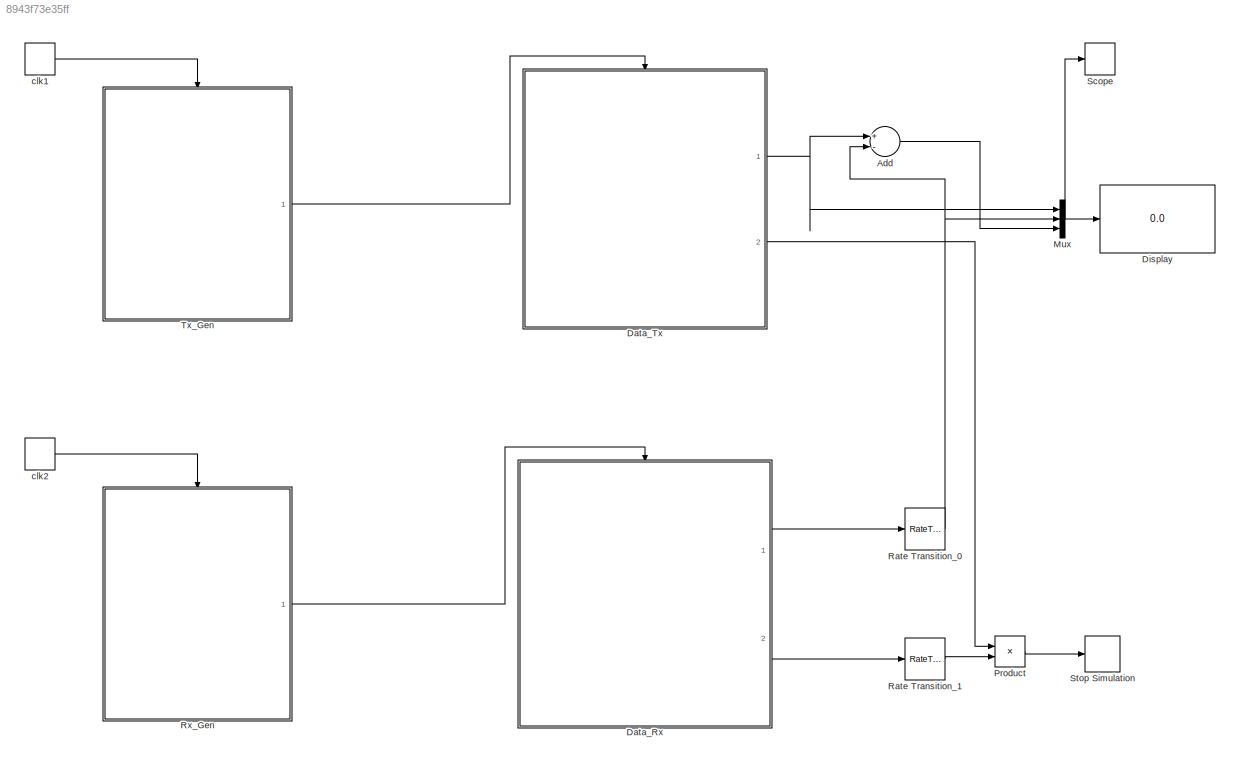
MODEL slx_8943f73e35ff
KIND model
CONFIG AbsTol = auto
CONFIG FixedStep = auto
CONFIG InitFcn = CB_Init;
CONFIG MaxStep = auto
CONFIG MinStep = auto
CONFIG RelTol = 1e-3
CONFIG SampleTimeConstraint = Unconstrained
CONFIG Solver = ode45
CONFIG SolverMode = Auto
CONFIG SolverName = ode45
CONFIG StartTime = 0.0
CONFIG StopFcn = CB_Stop;
CONFIG StopTime = inf
BLOCK [Sum] Add
  AccumDataTypeStr = double
  InputSameDT = off
  Inputs = +-
  OutDataTypeStr = double
  Ports = [2, 1]
  SaturateOnIntegerOverflow = off
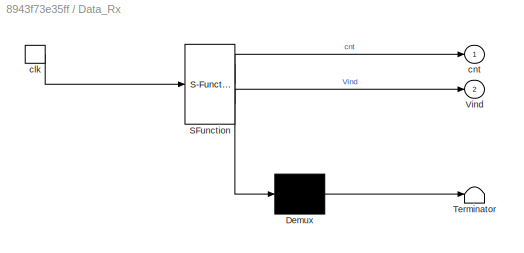
BLOCK [SubSystem] Data_Rx
  ErrorFcn = Stateflow.Translate.translate
  PermitHierarchicalResolution = ExplicitOnly
  Ports = [0, 2, 0, 1]
  RequestExecContextInheritance = off
  SFBlockType = Chart
  TreatAsAtomicUnit = on
BLOCK [Demux] Data_Rx/ Demux 
  Outputs = 1
  Ports = [1, 1]
BLOCK [S-Function] Data_Rx/ SFunction 
  EnableBusSupport = on
  FunctionName = sf_sfun
  PortCounts = [1 3]
  Ports = [1, 3]
  Tag = Stateflow S-Function lab_exer_mat_2 2
BLOCK [Terminator] Data_Rx/ Terminator 
BLOCK [Outport] Data_Rx/Vind
  IconDisplay = Port number
  Port = 2
BLOCK [TriggerPort] Data_Rx/clk
  Ports = [0, 1]
  ShowOutputPort = on
  StatesWhenEnabling = held
  TriggerType = either
BLOCK [Outport] Data_Rx/cnt
  IconDisplay = Port number
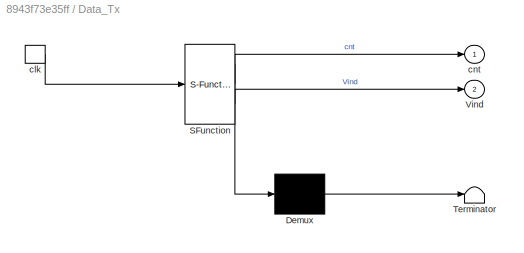
BLOCK [SubSystem] Data_Tx
  ErrorFcn = Stateflow.Translate.translate
  PermitHierarchicalResolution = ExplicitOnly
  Ports = [0, 2, 0, 1]
  RequestExecContextInheritance = off
  SFBlockType = Chart
  TreatAsAtomicUnit = on
BLOCK [Demux] Data_Tx/ Demux 
  Outputs = 1
  Ports = [1, 1]
BLOCK [S-Function] Data_Tx/ SFunction 
  EnableBusSupport = on
  FunctionName = sf_sfun
  PortCounts = [1 3]
  Ports = [1, 3]
  Tag = Stateflow S-Function lab_exer_mat_2 1
BLOCK [Terminator] Data_Tx/ Terminator 
BLOCK [Outport] Data_Tx/Vind
  IconDisplay = Port number
  Port = 2
BLOCK [TriggerPort] Data_Tx/clk
  Ports = [0, 1]
  ShowOutputPort = on
  StatesWhenEnabling = held
  TriggerType = either
BLOCK [Outport] Data_Tx/cnt
  IconDisplay = Port number
BLOCK [Display] Display
  Decimation = 1
  Ports = [1]
BLOCK [Mux] Mux
  DisplayOption = bar
  Inputs = 3
  Ports = [3, 1]
BLOCK [Product] Product
  InputSameDT = off
  OutDataTypeStr = Inherit: Inherit via internal rule
  Ports = [2, 1]
  SaturateOnIntegerOverflow = off
BLOCK [RateTransition] Rate Transition_0
BLOCK [RateTransition] Rate Transition_1
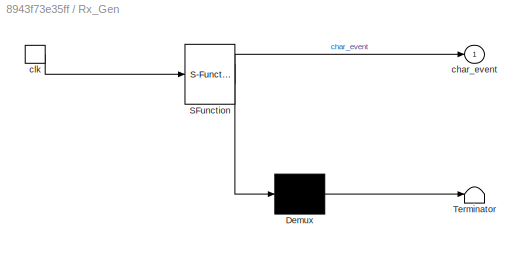
BLOCK [SubSystem] Rx_Gen
  ErrorFcn = Stateflow.Translate.translate
  PermitHierarchicalResolution = ExplicitOnly
  Ports = [0, 1, 0, 1]
  RequestExecContextInheritance = off
  SFBlockType = Chart
  TreatAsAtomicUnit = on
BLOCK [Demux] Rx_Gen/ Demux 
  Outputs = 1
  Ports = [1, 1]
BLOCK [S-Function] Rx_Gen/ SFunction 
  EnableBusSupport = on
  FunctionName = sf_sfun
  PortCounts = [1 2]
  Ports = [1, 2]
  Tag = Stateflow S-Function lab_exer_mat_2 4
BLOCK [Terminator] Rx_Gen/ Terminator 
BLOCK [Outport] Rx_Gen/char_event
  IconDisplay = Port number
BLOCK [TriggerPort] Rx_Gen/clk
  Ports = [0, 1]
  ShowOutputPort = on
  StatesWhenEnabling = held
BLOCK [TimeScope] Scope
  NumInputPorts = 1
  Ports = [1]
  ScopeSpecificationString = Simulink.scopes.TimeScopeBlockCfg('CurrentConfiguration', extmgr.ConfigurationSet(extmgr.Configuration('Core','General UI',true,'ShowLoadConfigSet',false,'ShowNewAction',false,'FigureColor',[0.156862745098039 0.156862745098039 0.156862745098039],'ShowSaveConfigSet',false,'ShowConfiguration',true,'ShowPlaybackToolbar',false),extmgr.Configuration('Core','Source UI',true,'ShowRecentSources',false,'Sh...<+2264ch>
BLOCK [Stop] Stop Simulation
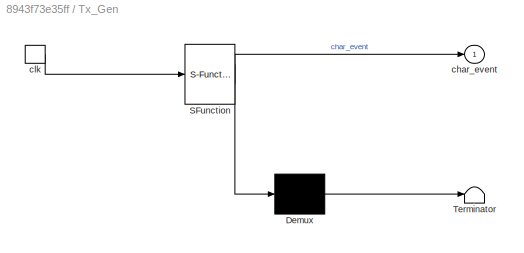
BLOCK [SubSystem] Tx_Gen
  ErrorFcn = Stateflow.Translate.translate
  PermitHierarchicalResolution = ExplicitOnly
  Ports = [0, 1, 0, 1]
  RequestExecContextInheritance = off
  SFBlockType = Chart
  TreatAsAtomicUnit = on
BLOCK [Demux] Tx_Gen/ Demux 
  Outputs = 1
  Ports = [1, 1]
BLOCK [S-Function] Tx_Gen/ SFunction 
  EnableBusSupport = on
  FunctionName = sf_sfun
  PortCounts = [1 2]
  Ports = [1, 2]
  Tag = Stateflow S-Function lab_exer_mat_2 3
BLOCK [Terminator] Tx_Gen/ Terminator 
BLOCK [Outport] Tx_Gen/char_event
  IconDisplay = Port number
BLOCK [TriggerPort] Tx_Gen/clk
  Ports = [0, 1]
  ShowOutputPort = on
  StatesWhenEnabling = held
BLOCK [DiscretePulseGenerator] clk1
  Period = T_Tx
  Ports = [0, 1]
  PulseType = Time based
  PulseWidth = 0.5
BLOCK [DiscretePulseGenerator] clk2
  Period = T_Rx
  Ports = [0, 1]
  PulseType = Time based
  PulseWidth = 0.5
LINE Add:1 -> Mux:3
LINE Data_Rx:1 -> Rate Transition_0:1
LINE Data_Rx:2 -> Rate Transition_1:1
NET Data_Tx:1 -> Add:1, Mux:1
LINE Data_Tx:2 -> Product:1
NET Mux:1 -> Display:1, Scope:1
LINE Product:1 -> Stop Simulation:1
NET Rate Transition_0:1 -> Add:2, Mux:2
LINE Rate Transition_1:1 -> Product:2
LINE Rx_Gen:1 -> Data_Rx:trigger
LINE Tx_Gen:1 -> Data_Tx:trigger
LINE clk1:1 -> Tx_Gen:trigger
LINE clk2:1 -> Rx_Gen:trigger
note: NET lines group one-source signal fan-out (src -> all destinations, sorted); 1:1 wires keep LINE
CHART Data_Tx states=4 transitions=7
  STATE_LABEL 'STOP\nentry: Vind = 1;'
  STATE_LABEL 'INIT\nentry: cnt = cnt+1;'
  STATE_LABEL 'FULL'
  STATE_LABEL 'TRANSMIT\n\nentry:\nml.c_buf[ml.Wp+1]= ml.Tx_buf[cnt];\nml.Wp = ml.mod(ml.Wp+1, ml.buf_size);'
CHART Data_Rx states=4 transitions=7
  STATE_LABEL 'STOP\nentry: Vind = 1;'
  STATE_LABEL 'INIT\nentry: cnt = cnt+1;'
  STATE_LABEL 'EMPTY'
  STATE_LABEL 'RECEIVE\n\nentry:\nml.Rx_buf[cnt] = ml.c_buf[ml.Rp+1];\nml.Rp = ml.mod(ml.Rp+1, ml.buf_size);'
CHART Tx_Gen states=9 transitions=16
  STATE_LABEL 'C'
  STATE_LABEL 'UpCounter\n\nentry: upc = upc + 1;\nduring: upc = upc + 1;'
  STATE_LABEL '{upc=0;}'
  STATE_LABEL 'UpCounter\n\nentry: upc = upc + 1;\nduring: upc = upc + 1;'
  STATE_LABEL 'D'
  STATE_LABEL 'S0\n\nentry: cnt = cnt + 1;\nchar_event;\nml.char_vals[cnt] = ml.randi(ml.Range, 1, 1);\nml.time_vals[cnt] = upc;'
  STATE_LABEL 'S5'
  STATE_LABEL 'S4'
  STATE_LABEL 'S3'
  STATE_LABEL 'S2'
  STATE_LABEL 'S1'
  STATE_LABEL '{cnt=0;}'
  STATE_LABEL '[val<=ml.qs[3]]'
  STATE_LABEL '[val<=ml.qs[1]]'
  STATE_LABEL '[val<=ml.qs[2]]'
  STATE_LABEL '{val=ml.rand(1);}'
  STATE_LABEL '[val>ml.qs[3]]'
  STATE_LABEL '[val>ml.qs[2]]'
  STATE_LABEL '[val>ml.qs[1]]'
  STATE_LABEL '{val=ml.rand(1);}'
  STATE_LABEL '{val=ml.rand(1);}'
  STATE_LABEL 'S0\n\nentry: cnt = cnt + 1;\nchar_event;\nml.char_vals[cnt] = ml.randi(ml.Range, 1, 1);\nml.time_vals[cnt] = upc;'
  STATE_LABEL 'S5'
  STATE_LABEL 'S4'
  STATE_LABEL 'S3'
  STATE_LABEL 'S2'
  STATE_LABEL 'S1'
CHART Rx_Gen states=9 transitions=16
  STATE_LABEL 'C'
  STATE_LABEL 'UpCounter\n\nentry: upc = upc + 1;\nduring: upc = upc + 1;'
  STATE_LABEL '{upc=0;}'
  STATE_LABEL 'UpCounter\n\nentry: upc = upc + 1;\nduring: upc = upc + 1;'
  STATE_LABEL 'D'
  STATE_LABEL 'S0\n\nentry: cnt = cnt + 1;\nchar_event;\nml.char_vals[cnt] = ml.randi(ml.Range, 1, 1);\nml.time_vals[cnt] = upc;'
  STATE_LABEL 'S5'
  STATE_LABEL 'S4'
  STATE_LABEL 'S3'
  STATE_LABEL 'S2'
  STATE_LABEL 'S1'
  STATE_LABEL '{cnt=0;}'
  STATE_LABEL '[val<=ml.qs[3]]'
  STATE_LABEL '[val<=ml.qs[1]]'
  STATE_LABEL '[val<=ml.qs[2]]'
  STATE_LABEL '{val=ml.rand(1);}'
  STATE_LABEL '[val>ml.qs[3]]'
  STATE_LABEL '[val>ml.qs[2]]'
  STATE_LABEL '[val>ml.qs[1]]'
  STATE_LABEL '{val=ml.rand(1);}'
  STATE_LABEL '{val=ml.rand(1);}'
  STATE_LABEL 'S0\n\nentry: cnt = cnt + 1;\nchar_event;\nml.char_vals[cnt] = ml.randi(ml.Range, 1, 1);\nml.time_vals[cnt] = upc;'
  STATE_LABEL 'S5'
  STATE_LABEL 'S4'
  STATE_LABEL 'S3'
  STATE_LABEL 'S2'
  STATE_LABEL 'S1'
